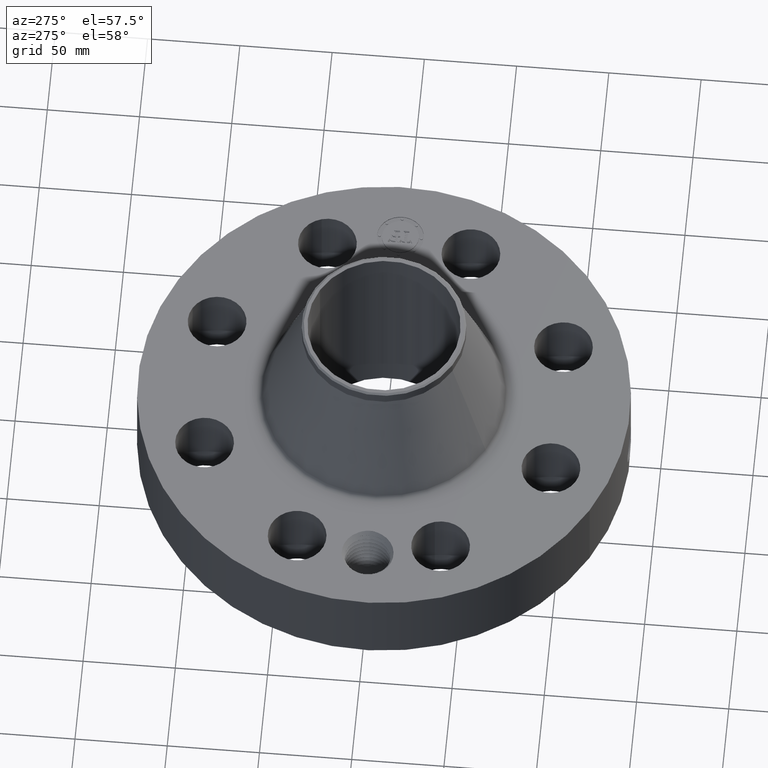
[diagram: clean part render]
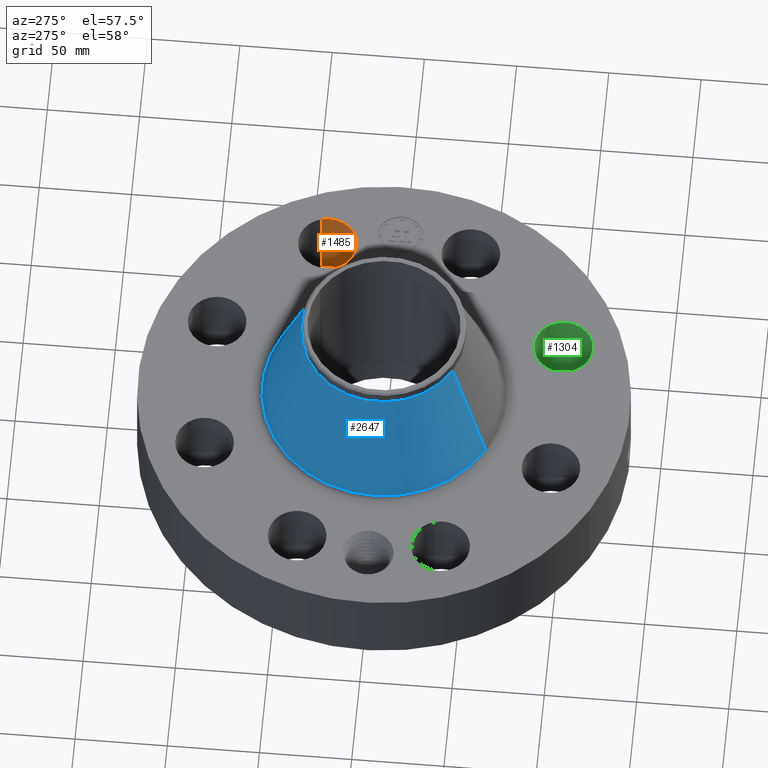
[diagram: same view with three faces highlighted in distinct colors, each labeled with its STEP entity id]
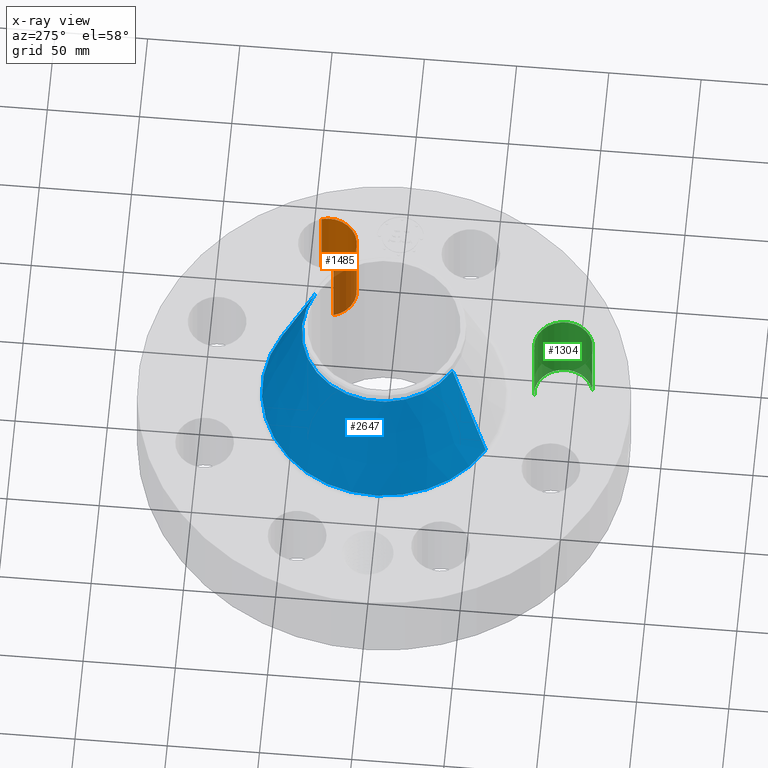
[diagram: x-ray of the same camera — body ghosted, the three highlighted faces saturated]
A machine part, auxiliary view with three faces highlighted in distinct colors.
The next image is the same camera in x-ray (body ghosted, the three faces saturated) — at least one of them is partly hidden behind the body in this view.
Their STEP definitions:

[orange] entity #1485 — the highlighted cylindrical surface (edge-blend (fillet) strip) has radius 15.875 mm, axis along (0, 0, -1).
#384=AXIS2_PLACEMENT_3D('Circle Axis2P3D',#382,#383,$) ;
#699=AXIS2_PLACEMENT_3D('Circle Axis2P3D',#697,#698,$) ;
#1460=AXIS2_PLACEMENT_3D('Cylinder Axis2P3D',#1457,#1458,#1459) ;
#377=CARTESIAN_POINT('Vertex',(3.09579961132,1.3547715225,0.250000000001)) ;
#379=CARTESIAN_POINT('Vertex',(4.2952366488,1.70669593643,0.250000000001)) ;
#382=CARTESIAN_POINT('Axis2P3D Location',(3.69551813006,1.53073372947,0.250000000001)) ;
#697=CARTESIAN_POINT('Axis2P3D Location',(3.69551813006,1.53073372947,2.13000000001)) ;
#701=CARTESIAN_POINT('Vertex',(4.2952366488,1.70669593643,2.13000000001)) ;
#703=CARTESIAN_POINT('Vertex',(3.09579961132,1.3547715225,2.13000000001)) ;
#1457=CARTESIAN_POINT('Axis2P3D Location',(3.69551813006,1.53073372947,2.12606299213)) ;
#1462=CARTESIAN_POINT('Line Origine',(3.09579961132,1.3547715225,1.19)) ;
#1467=CARTESIAN_POINT('Line Origine',(4.2952366488,1.70669593643,1.19)) ;
#383=DIRECTION('Axis2P3D Direction',(0.,0.,-0.0393700787402)) ;
#698=DIRECTION('Axis2P3D Direction',(0.,0.,-0.0393700787402)) ;
#1458=DIRECTION('Axis2P3D Direction',(0.,0.,-0.0393700787402)) ;
#1459=DIRECTION('Axis2P3D XDirection',(0.0377775444876,0.0110842335096,0.)) ;
#1463=DIRECTION('Vector Direction',(0.,0.,-0.0393700787402)) ;
#1468=DIRECTION('Vector Direction',(0.,0.,-0.0393700787402)) ;
#1464=VECTOR('Line Direction',#1463,0.0393700787402) ;
#1469=VECTOR('Line Direction',#1468,0.0393700787402) ;
#1480=ORIENTED_EDGE('',*,*,#1471,.F.) ;
#1481=ORIENTED_EDGE('',*,*,#386,.T.) ;
#1482=ORIENTED_EDGE('',*,*,#1466,.T.) ;
#1483=ORIENTED_EDGE('',*,*,#705,.F.) ;
#1485=ADVANCED_FACE('PartBody',(#1484),#1461,.F.) ;
#385=CIRCLE('generated circle',#384,0.625000000003) ;
#700=CIRCLE('generated circle',#699,0.625000000003) ;
#1461=CYLINDRICAL_SURFACE('generated cylinder',#1460,0.625000000003) ;
#386=EDGE_CURVE('',#380,#378,#385,.T.) ;
#705=EDGE_CURVE('',#702,#704,#700,.T.) ;
#1466=EDGE_CURVE('',#378,#704,#1465,.F.) ;
#1471=EDGE_CURVE('',#380,#702,#1470,.F.) ;
#1479=EDGE_LOOP('',(#1480,#1481,#1482,#1483)) ;
#1484=FACE_OUTER_BOUND('',#1479,.T.) ;
#1465=LINE('Line',#1462,#1464) ;
#1470=LINE('Line',#1467,#1469) ;
#378=VERTEX_POINT('',#377) ;
#380=VERTEX_POINT('',#379) ;
#702=VERTEX_POINT('',#701) ;
#704=VERTEX_POINT('',#703) ;

[blue] entity #2647 — the highlighted conical surface has half-angle 19.491 deg.
#1911=AXIS2_PLACEMENT_3D('Circle Axis2P3D',#1909,#1910,$) ;
#2608=AXIS2_PLACEMENT_3D('Cone Axis2P3D',#2605,#2606,#2607) ;
#2638=AXIS2_PLACEMENT_3D('Circle Axis2P3D',#2636,#2637,$) ;
#1887=CARTESIAN_POINT('Vertex',(1.24492345067,2.27881709092,2.20996039767)) ;
#1894=CARTESIAN_POINT('Vertex',(-1.24492345067,-2.27881709092,2.20996039767)) ;
#1909=CARTESIAN_POINT('Axis2P3D Location',(0.,0.,2.20996039767)) ;
#2605=CARTESIAN_POINT('Axis2P3D Location',(0.,0.,4.60211973689)) ;
#2610=CARTESIAN_POINT('Line Origine',(1.04195907161,1.90729328712,3.40604006728)) ;
#2614=CARTESIAN_POINT('Vertex',(0.838994692561,1.53576948331,4.60211973689)) ;
#2621=CARTESIAN_POINT('Vertex',(-0.838994692561,-1.53576948331,4.60211973689)) ;
#2624=CARTESIAN_POINT('Line Origine',(-1.04195907161,-1.90729328712,3.40604006728)) ;
#2636=CARTESIAN_POINT('Axis2P3D Location',(0.,0.,4.60211973689)) ;
#1910=DIRECTION('Axis2P3D Direction',(0.,0.,-0.0393700787402)) ;
#2606=DIRECTION('Axis2P3D Direction',(0.,0.,-0.0393700787402)) ;
#2607=DIRECTION('Axis2P3D XDirection',(-0.0188750212049,-0.0345504945626,0.)) ;
#2611=DIRECTION('Vector Direction',(0.00629790285958,0.011528233857,-0.0371138699641)) ;
#2625=DIRECTION('Vector Direction',(-0.00629790285958,-0.011528233857,-0.0371138699641)) ;
#2637=DIRECTION('Axis2P3D Direction',(0.,0.,-0.0393700787402)) ;
#2612=VECTOR('Line Direction',#2611,0.0393700787402) ;
#2626=VECTOR('Line Direction',#2625,0.0393700787402) ;
#2642=ORIENTED_EDGE('',*,*,#1913,.F.) ;
#2643=ORIENTED_EDGE('',*,*,#2628,.T.) ;
#2644=ORIENTED_EDGE('',*,*,#2640,.T.) ;
#2645=ORIENTED_EDGE('',*,*,#2616,.F.) ;
#2647=ADVANCED_FACE('PartBody',(#2646),#2609,.T.) ;
#1912=CIRCLE('generated circle',#1911,2.59669823658) ;
#2639=CIRCLE('generated circle',#2638,1.75000000001) ;
#2609=CONICAL_SURFACE('Cone',#2608,1.75000000001,0.340186969639) ;
#1913=EDGE_CURVE('',#1895,#1888,#1912,.T.) ;
#2616=EDGE_CURVE('',#1888,#2615,#2613,.F.) ;
#2628=EDGE_CURVE('',#1895,#2622,#2627,.F.) ;
#2640=EDGE_CURVE('',#2622,#2615,#2639,.T.) ;
#2641=EDGE_LOOP('',(#2642,#2643,#2644,#2645)) ;
#2646=FACE_OUTER_BOUND('',#2641,.T.) ;
#2613=LINE('Line',#2610,#2612) ;
#2627=LINE('Line',#2624,#2626) ;
#1888=VERTEX_POINT('',#1887) ;
#1895=VERTEX_POINT('',#1894) ;
#2615=VERTEX_POINT('',#2614) ;
#2622=VERTEX_POINT('',#2621) ;

[green] entity #1304 — the highlighted cylindrical surface (edge-blend (fillet) strip) has radius 15.875 mm, axis along (0, -0, -1).
#267=AXIS2_PLACEMENT_3D('Circle Axis2P3D',#265,#266,$) ;
#600=AXIS2_PLACEMENT_3D('Circle Axis2P3D',#598,#599,$) ;
#1286=AXIS2_PLACEMENT_3D('Cylinder Axis2P3D',#1283,#1284,#1285) ;
#265=CARTESIAN_POINT('Axis2P3D Location',(1.53073372947,-3.69551813006,0.250000000001)) ;
#269=CARTESIAN_POINT('Vertex',(1.3547715225,-3.09579961132,0.250000000001)) ;
#271=CARTESIAN_POINT('Vertex',(1.70669593643,-4.2952366488,0.250000000001)) ;
#593=CARTESIAN_POINT('Vertex',(1.70669593643,-4.2952366488,2.13000000001)) ;
#595=CARTESIAN_POINT('Vertex',(1.3547715225,-3.09579961132,2.13000000001)) ;
#598=CARTESIAN_POINT('Axis2P3D Location',(1.53073372947,-3.69551813006,2.13000000001)) ;
#1283=CARTESIAN_POINT('Axis2P3D Location',(1.53073372947,-3.69551813006,2.12606299213)) ;
#1288=CARTESIAN_POINT('Line Origine',(1.3547715225,-3.09579961132,1.19)) ;
#1293=CARTESIAN_POINT('Line Origine',(1.70669593643,-4.2952366488,1.19)) ;
#266=DIRECTION('Axis2P3D Direction',(0.,0.,-0.0393700787402)) ;
#599=DIRECTION('Axis2P3D Direction',(0.,0.,-0.0393700787402)) ;
#1284=DIRECTION('Axis2P3D Direction',(0.,-0.,-0.0393700787402)) ;
#1285=DIRECTION('Axis2P3D XDirection',(0.0110842335096,-0.0377775444876,0.)) ;
#1289=DIRECTION('Vector Direction',(0.,0.,-0.0393700787402)) ;
#1294=DIRECTION('Vector Direction',(0.,0.,-0.0393700787402)) ;
#1290=VECTOR('Line Direction',#1289,0.0393700787402) ;
#1295=VECTOR('Line Direction',#1294,0.0393700787402) ;
#1299=ORIENTED_EDGE('',*,*,#1292,.F.) ;
#1300=ORIENTED_EDGE('',*,*,#273,.T.) ;
#1301=ORIENTED_EDGE('',*,*,#1297,.T.) ;
#1302=ORIENTED_EDGE('',*,*,#602,.F.) ;
#1304=ADVANCED_FACE('PartBody',(#1303),#1287,.F.) ;
#268=CIRCLE('generated circle',#267,0.625000000003) ;
#601=CIRCLE('generated circle',#600,0.625000000003) ;
#1287=CYLINDRICAL_SURFACE('generated cylinder',#1286,0.625000000003) ;
#273=EDGE_CURVE('',#270,#272,#268,.T.) ;
#602=EDGE_CURVE('',#596,#594,#601,.T.) ;
#1292=EDGE_CURVE('',#270,#596,#1291,.F.) ;
#1297=EDGE_CURVE('',#272,#594,#1296,.F.) ;
#1298=EDGE_LOOP('',(#1299,#1300,#1301,#1302)) ;
#1303=FACE_OUTER_BOUND('',#1298,.T.) ;
#1291=LINE('Line',#1288,#1290) ;
#1296=LINE('Line',#1293,#1295) ;
#270=VERTEX_POINT('',#269) ;
#272=VERTEX_POINT('',#271) ;
#594=VERTEX_POINT('',#593) ;
#596=VERTEX_POINT('',#595) ;